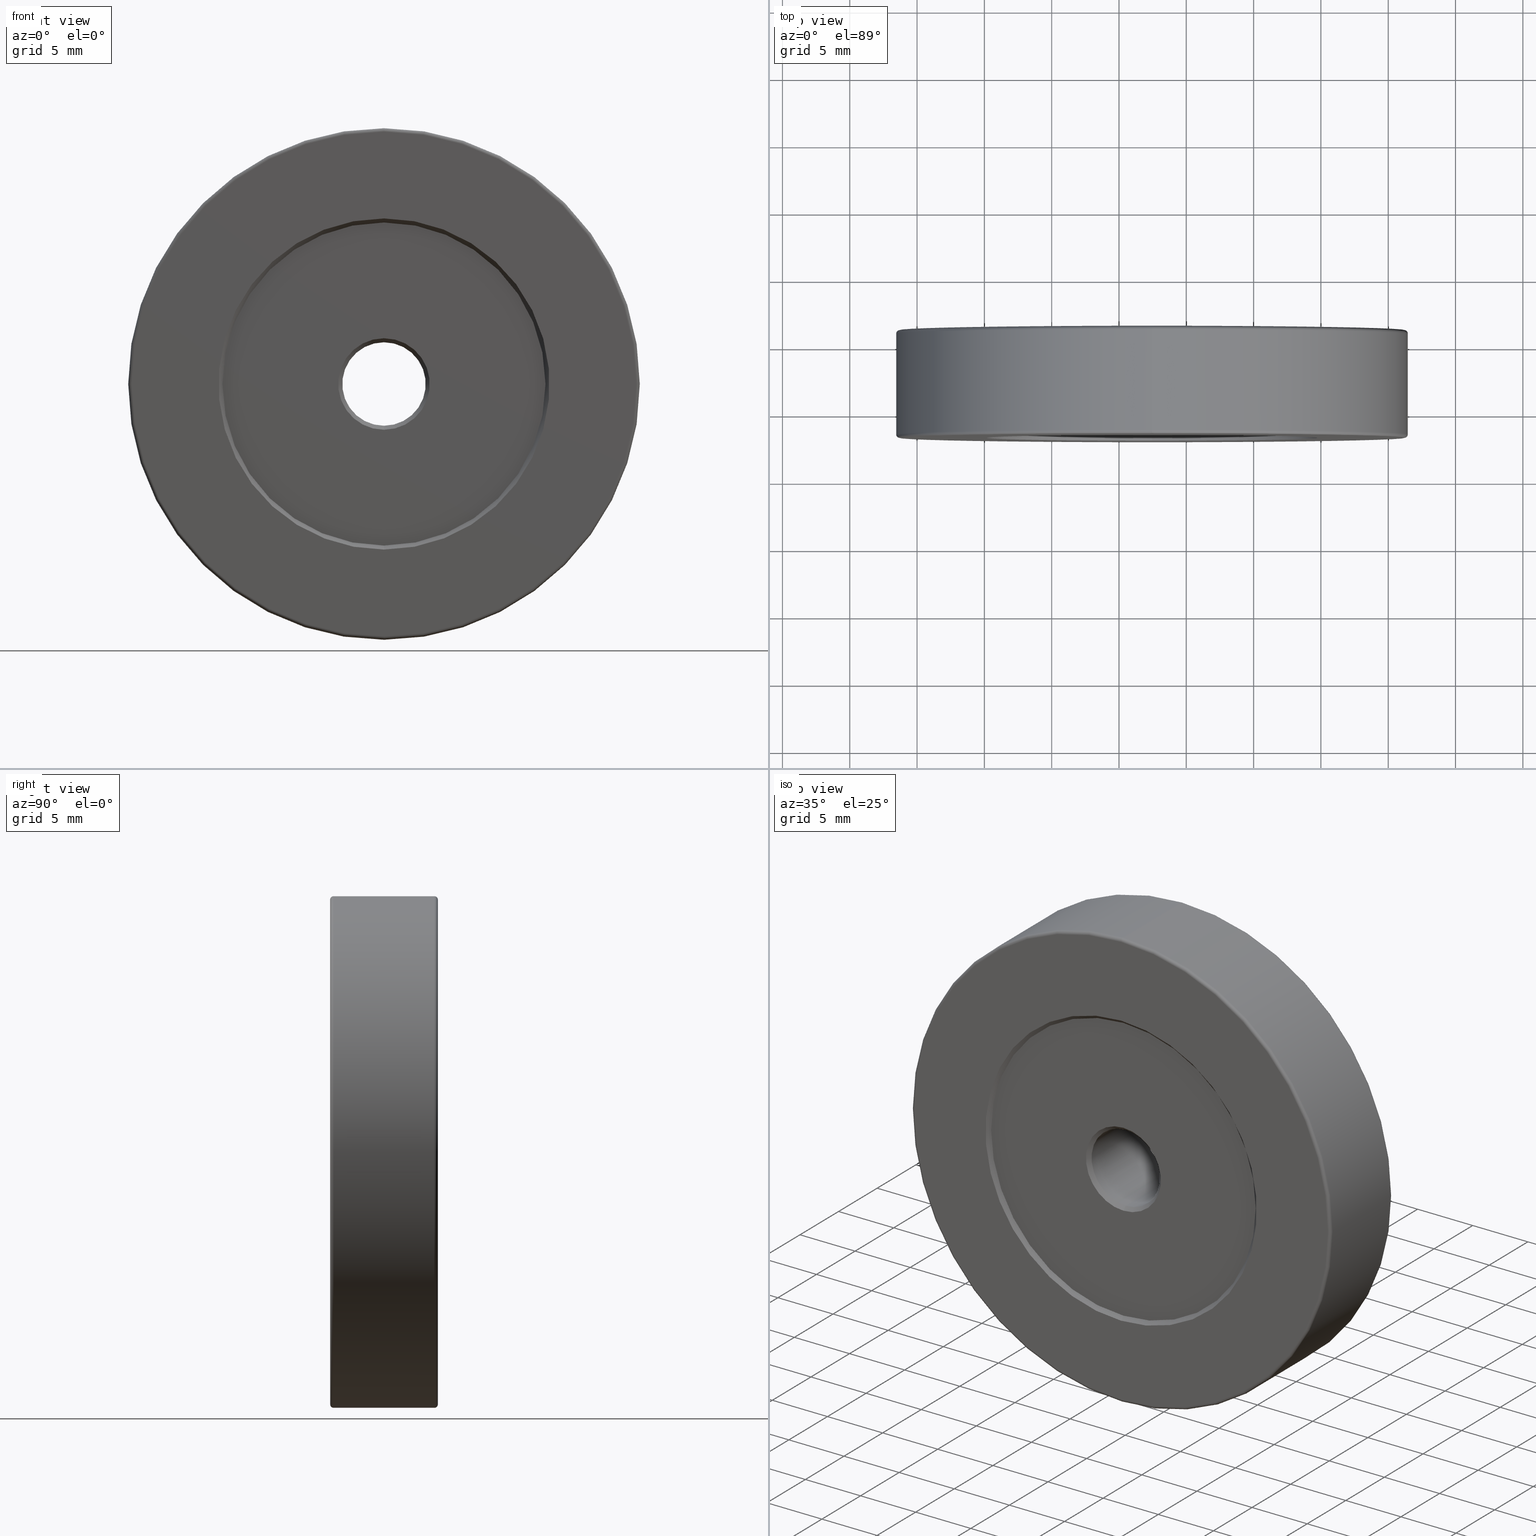
[diagram: canonical four-view strip — front | top / right | iso, engineering-drawing reading convention]
A machine part, canonical four-view strip (front | top / right | iso — engineering-drawing reading convention). The complete STEP part file that produces these views, byte-faithful:
ISO-10303-21;
HEADER;
FILE_DESCRIPTION (( 'STEP AP203' ),
    '1' );
FILE_NAME ('1.4.2.121_ZGH-38-DK8.STEP',
    '2024-04-06T05:22:08',
    ( '' ),
    ( '' ),
    'SwSTEP 2.0',
    'SolidWorks 2021',
    '' );
FILE_SCHEMA (( 'CONFIG_CONTROL_DESIGN' ));
ENDSEC;

DATA;
#1 = ADVANCED_FACE ( 'NONE', ( #140, #541 ), #116, .T. ) ;
#2 = ORIENTED_EDGE ( 'NONE', *, *, #213, .T. ) ;
#3 = EDGE_CURVE ( 'NONE', #122, #490, #70, .T. ) ;
#4 = CARTESIAN_POINT ( 'NONE',  ( -7.546808913101048510, 0.5064048726972784076, 38.00000000000000000 ) ) ;
#5 = ORIENTED_EDGE ( 'NONE', *, *, #168, .F. ) ;
#6 = CARTESIAN_POINT ( 'NONE',  ( -7.546808913101048510, -6.893595127302727832, 38.00000000000000000 ) ) ;
#7 = CARTESIAN_POINT ( 'NONE',  ( -7.546808913101048510, 0.8564048726972719461, 56.99999999999999289 ) ) ;
#8 = AXIS2_PLACEMENT_3D ( 'NONE', #80, #405, #69 ) ;
#9 = AXIS2_PLACEMENT_3D ( 'NONE', #195, #295, #536 ) ;
#10 = DIRECTION ( 'NONE',  ( 0.000000000000000000, 1.000000000000000000, 0.000000000000000000 ) ) ;
#11 = DIRECTION ( 'NONE',  ( -0.000000000000000000, -1.000000000000000000, -0.000000000000000000 ) ) ;
#12 = CC_DESIGN_DATE_AND_TIME_ASSIGNMENT ( #193, #202, ( #402 ) ) ;
#13 = CYLINDRICAL_SURFACE ( 'NONE', #504, 19.00000000000000000 ) ;
#14 = DIRECTION ( 'NONE',  ( 0.000000000000000000, -0.000000000000000000, 1.000000000000000000 ) ) ;
#15 = TOROIDAL_SURFACE ( 'NONE', #255, 18.75000000000000000, 0.2500000000000000000 ) ;
#16 = AXIS2_PLACEMENT_3D ( 'NONE', #579, #522, #200 ) ;
#17 = CARTESIAN_POINT ( 'NONE',  ( -7.546808913101045846, -6.893595127302727832, 19.25000000000000000 ) ) ;
#18 = ORIENTED_EDGE ( 'NONE', *, *, #304, .T. ) ;
#19 = FACE_OUTER_BOUND ( 'NONE', #260, .T. ) ;
#20 = ADVANCED_FACE ( 'NONE', ( #371 ), #158, .F. ) ;
#21 = VERTEX_POINT ( 'NONE', #143 ) ;
#22 = DIRECTION ( 'NONE',  ( 8.659560562354932858E-17, 0.7071067811865474617, -0.7071067811865474617 ) ) ;
#23 = ORIENTED_EDGE ( 'NONE', *, *, #63, .T. ) ;
#24 = AXIS2_PLACEMENT_3D ( 'NONE', #75, #211, #501 ) ;
#25 = AXIS2_PLACEMENT_3D ( 'NONE', #163, #355, #302 ) ;
#26 = ORIENTED_EDGE ( 'NONE', *, *, #289, .T. ) ;
#27 = DIRECTION ( 'NONE',  ( -0.000000000000000000, -1.000000000000000000, -0.000000000000000000 ) ) ;
#28 = CONICAL_SURFACE ( 'NONE', #484, 12.00000000000000355, 0.7853981633974482790 ) ;
#29 = ORIENTED_EDGE ( 'NONE', *, *, #168, .T. ) ;
#30 = CARTESIAN_POINT ( 'NONE',  ( -7.546808913101048510, 1.106404872697272168, 38.00000000000000000 ) ) ;
#31 = ORIENTED_EDGE ( 'NONE', *, *, #139, .F. ) ;
#32 = DIRECTION ( 'NONE',  ( -0.000000000000000000, -1.000000000000000000, -0.000000000000000000 ) ) ;
#33 = DIRECTION ( 'NONE',  ( 0.000000000000000000, 1.000000000000000000, 0.000000000000000000 ) ) ;
#34 = EDGE_CURVE ( 'NONE', #187, #490, #403, .T. ) ;
#35 = AXIS2_PLACEMENT_3D ( 'NONE', #348, #170, #121 ) ;
#36 = LOCAL_TIME ( 13, 22, 8.000000000000000000, #285 ) ;
#37 = CIRCLE ( 'NONE', #414, 18.74999999999999645 ) ;
#38 = ORIENTED_EDGE ( 'NONE', *, *, #108, .T. ) ;
#39 = LINE ( 'NONE', #281, #102 ) ;
#40 = LINE ( 'NONE', #557, #454 ) ;
#41 = CARTESIAN_POINT ( 'NONE',  ( -7.546808913101048510, -6.893595127302727832, 38.00000000000000000 ) ) ;
#42 = ADVANCED_FACE ( 'NONE', ( #283, #206 ), #472, .T. ) ;
#43 = VERTEX_POINT ( 'NONE', #521 ) ;
#44 = COORDINATED_UNIVERSAL_TIME_OFFSET ( 8, 0, .AHEAD. ) ;
#45 = FACE_BOUND ( 'NONE', #456, .T. ) ;
#46 = APPROVAL_PERSON_ORGANIZATION ( #357, #243, #461 ) ;
#47 = AXIS2_PLACEMENT_3D ( 'NONE', #558, #473, #363 ) ;
#48 = CONICAL_SURFACE ( 'NONE', #259, 3.400000000000000355, 0.7853981633974490562 ) ;
#49 = ORIENTED_EDGE ( 'NONE', *, *, #562, .T. ) ;
#50 = DIRECTION ( 'NONE',  ( 0.000000000000000000, 0.000000000000000000, 1.000000000000000000 ) ) ;
#51 = DIRECTION ( 'NONE',  ( 0.000000000000000000, 0.000000000000000000, 1.000000000000000000 ) ) ;
#52 = ORIENTED_EDGE ( 'NONE', *, *, #172, .F. ) ;
#53 = CALENDAR_DATE ( 2024, 6, 4 ) ;
#54 = FACE_OUTER_BOUND ( 'NONE', #600, .T. ) ;
#55 = CARTESIAN_POINT ( 'NONE',  ( -7.546808913101048510, 1.106404872697272168, 38.00000000000000000 ) ) ;
#56 = EDGE_CURVE ( 'NONE', #407, #77, #506, .T. ) ;
#57 = CIRCLE ( 'NONE', #524, 12.29999999999999893 ) ;
#58 = CONICAL_SURFACE ( 'NONE', #16, 3.400000000000000355, 0.7853981633974490562 ) ;
#59 = DIRECTION ( 'NONE',  ( 0.000000000000000000, 0.000000000000000000, 1.000000000000000000 ) ) ;
#60 = DIRECTION ( 'NONE',  ( 0.000000000000000000, 0.000000000000000000, -1.000000000000000000 ) ) ;
#61 = DIRECTION ( 'NONE',  ( 0.000000000000000000, 0.000000000000000000, -1.000000000000000000 ) ) ;
#62 = DIRECTION ( 'NONE',  ( 0.000000000000000000, 0.000000000000000000, 1.000000000000000000 ) ) ;
#63 = EDGE_CURVE ( 'NONE', #511, #595, #180, .T. ) ;
#64 = AXIS2_PLACEMENT_3D ( 'NONE', #245, #379, #476 ) ;
#65 = EDGE_CURVE ( 'NONE', #538, #592, #207, .T. ) ;
#66 = APPROVAL_STATUS ( 'not_yet_approved' ) ;
#67 = CARTESIAN_POINT ( 'NONE',  ( -7.546808913101046734, -6.893595127302727832, 50.29999999999998295 ) ) ;
#68 = VERTEX_POINT ( 'NONE', #408 ) ;
#69 = DIRECTION ( 'NONE',  ( 0.000000000000000000, 0.000000000000000000, 1.000000000000000000 ) ) ;
#70 = LINE ( 'NONE', #349, #227 ) ;
#71 = ADVANCED_FACE ( 'NONE', ( #417 ), #167, .T. ) ;
#72 = ORIENTED_EDGE ( 'NONE', *, *, #145, .F. ) ;
#73 = DIRECTION ( 'NONE',  ( 8.659560562354926695E-17, 0.7071067811865480168, -0.7071067811865470176 ) ) ;
#74 = AXIS2_PLACEMENT_3D ( 'NONE', #515, #470, #369 ) ;
#75 = CARTESIAN_POINT ( 'NONE',  ( -7.546808913101048510, -6.893595127302727832, 38.00000000000000000 ) ) ;
#76 = PRODUCT ( '1.4.2.121_ZGH-38-DK8', '1.4.2.121_ZGH-38-DK8', '', ( #466 ) ) ;
#77 = VERTEX_POINT ( 'NONE', #286 ) ;
#78 = CARTESIAN_POINT ( 'NONE',  ( -7.546808913101048510, -6.593595127302728010, 38.00000000000000000 ) ) ;
#79 = ORIENTED_EDGE ( 'NONE', *, *, #172, .T. ) ;
#80 = CARTESIAN_POINT ( 'NONE',  ( -7.546808913101048510, -6.893595127302727832, 38.00000000000000000 ) ) ;
#81 = ADVANCED_FACE ( 'NONE', ( #462, #45 ), #319, .F. ) ;
#82 = EDGE_LOOP ( 'NONE', ( #588, #543, #113, #72 ) ) ;
#83 = CIRCLE ( 'NONE', #590, 18.99999999999999645 ) ;
#84 = VERTEX_POINT ( 'NONE', #418 ) ;
#85 = DATE_TIME_ROLE ( 'creation_date' ) ;
#86 = DIRECTION ( 'NONE',  ( 0.000000000000000000, 0.000000000000000000, 1.000000000000000000 ) ) ;
#87 = ORIENTED_EDGE ( 'NONE', *, *, #65, .T. ) ;
#88 = CARTESIAN_POINT ( 'NONE',  ( 0.000000000000000000, 0.000000000000000000, 0.000000000000000000 ) ) ;
#89 = CARTESIAN_POINT ( 'NONE',  ( -7.546808913101048510, -6.893595127302727832, 34.89999999999999858 ) ) ;
#90 = CC_DESIGN_PERSON_AND_ORGANIZATION_ASSIGNMENT ( #150, #292, ( #165 ) ) ;
#91 = ORIENTED_EDGE ( 'NONE', *, *, #551, .T. ) ;
#92 = DIRECTION ( 'NONE',  ( 0.000000000000000000, 1.000000000000000000, 0.000000000000000000 ) ) ;
#93 = DIRECTION ( 'NONE',  ( 0.000000000000000000, 0.000000000000000000, 1.000000000000000000 ) ) ;
#94 = CC_DESIGN_APPROVAL ( #243, ( #594 ) ) ;
#95 = AXIS2_PLACEMENT_3D ( 'NONE', #249, #438, #569 ) ;
#96 = ORIENTED_EDGE ( 'NONE', *, *, #517, .F. ) ;
#97 = DIRECTION ( 'NONE',  ( -0.000000000000000000, -1.000000000000000000, -0.000000000000000000 ) ) ;
#98 = CARTESIAN_POINT ( 'NONE',  ( -7.546808913101048510, 0.8064048726972722347, 38.00000000000000000 ) ) ;
#99 = DIRECTION ( 'NONE',  ( -0.000000000000000000, 1.000000000000000000, -0.000000000000000000 ) ) ;
#100 = DIRECTION ( 'NONE',  ( 0.000000000000000000, -0.7071067811865470176, -0.7071067811865480168 ) ) ;
#101 = DIRECTION ( 'NONE',  ( -0.000000000000000000, -1.000000000000000000, -0.000000000000000000 ) ) ;
#102 = VECTOR ( 'NONE', #606, 1000.000000000000000 ) ;
#103 = APPROVAL_PERSON_ORGANIZATION ( #269, #583, #475 ) ;
#104 = AXIS2_PLACEMENT_3D ( 'NONE', #4, #358, #565 ) ;
#105 = PERSON_AND_ORGANIZATION ( #489, #147 ) ;
#106 = DIRECTION ( 'NONE',  ( -0.000000000000000000, -1.000000000000000000, -0.000000000000000000 ) ) ;
#107 = PERSON_AND_ORGANIZATION ( #489, #147 ) ;
#108 = EDGE_CURVE ( 'NONE', #122, #511, #186, .T. ) ;
#109 = CARTESIAN_POINT ( 'NONE',  ( -7.546808913101048510, -6.293595127302728187, 41.09999999999999432 ) ) ;
#110 = EDGE_CURVE ( 'NONE', #509, #447, #239, .T. ) ;
#111 = PERSON_AND_ORGANIZATION_ROLE ( 'design_supplier' ) ;
#112 = CARTESIAN_POINT ( 'NONE',  ( -7.546808913101045846, -6.643595127302727832, 19.25000000000000000 ) ) ;
#113 = ORIENTED_EDGE ( 'NONE', *, *, #431, .F. ) ;
#114 = EDGE_LOOP ( 'NONE', ( #221, #603, #79, #129 ) ) ;
#115 = FACE_OUTER_BOUND ( 'NONE', #404, .T. ) ;
#116 = PLANE ( 'NONE',  #362 ) ;
#117 = DIRECTION ( 'NONE',  ( -0.000000000000000000, 1.000000000000000000, -0.000000000000000000 ) ) ;
#118 = DIRECTION ( 'NONE',  ( -0.000000000000000000, -1.000000000000000000, -0.000000000000000000 ) ) ;
#119 = CIRCLE ( 'NONE', #372, 18.99999999999999645 ) ;
#120 = ORIENTED_EDGE ( 'NONE', *, *, #566, .T. ) ;
#121 = DIRECTION ( 'NONE',  ( 0.000000000000000000, 0.000000000000000000, -1.000000000000000000 ) ) ;
#122 = VERTEX_POINT ( 'NONE', #561 ) ;
#123 = FACE_OUTER_BOUND ( 'NONE', #356, .T. ) ;
#124 = ADVANCED_FACE ( 'NONE', ( #370 ), #28, .F. ) ;
#125 = ORIENTED_EDGE ( 'NONE', *, *, #56, .F. ) ;
#126 = CARTESIAN_POINT ( 'NONE',  ( -7.546808913101046734, -6.893595127302727832, 50.29999999999998295 ) ) ;
#127 = AXIS2_PLACEMENT_3D ( 'NONE', #30, #251, #215 ) ;
#128 = DIRECTION ( 'NONE',  ( 0.000000000000000000, 0.000000000000000000, -1.000000000000000000 ) ) ;
#129 = ORIENTED_EDGE ( 'NONE', *, *, #499, .F. ) ;
#130 = DIRECTION ( 'NONE',  ( -0.000000000000000000, 1.000000000000000000, -0.000000000000000000 ) ) ;
#131 = EDGE_LOOP ( 'NONE', ( #611, #26, #301, #52 ) ) ;
#132 = DIRECTION ( 'NONE',  ( 1.000000000000000000, 0.000000000000000000, 0.000000000000000000 ) ) ;
#133 = DIRECTION ( 'NONE',  ( -1.000000000000000000, 0.000000000000000000, 0.000000000000000000 ) ) ;
#134 = ORIENTED_EDGE ( 'NONE', *, *, #479, .F. ) ;
#135 = APPROVAL_STATUS ( 'not_yet_approved' ) ;
#136 = DIRECTION ( 'NONE',  ( 0.000000000000000000, -0.000000000000000000, 1.000000000000000000 ) ) ;
#137 = CIRCLE ( 'NONE', #567, 3.400000000000000355 ) ;
#138 = AXIS2_PLACEMENT_3D ( 'NONE', #252, #99, #161 ) ;
#139 = EDGE_CURVE ( 'NONE', #331, #274, #37, .T. ) ;
#140 = FACE_BOUND ( 'NONE', #419, .T. ) ;
#141 = PERSON_AND_ORGANIZATION_ROLE ( 'creator' ) ;
#142 = CARTESIAN_POINT ( 'NONE',  ( -7.546808913101048510, -6.293595127302728187, 38.00000000000000000 ) ) ;
#143 = CARTESIAN_POINT ( 'NONE',  ( -7.546808913101048510, 1.106404872697272168, 50.29999999999999716 ) ) ;
#144 = DIRECTION ( 'NONE',  ( 0.000000000000000000, 0.000000000000000000, 1.000000000000000000 ) ) ;
#145 = EDGE_CURVE ( 'NONE', #181, #77, #525, .T. ) ;
#146 = CARTESIAN_POINT ( 'NONE',  ( -7.546808913101048510, 0.8064048726972722347, 41.39999999999999147 ) ) ;
#147 = ORGANIZATION ( 'δָ��', 'δָ��', '' ) ;
#148 = AXIS2_PLACEMENT_3D ( 'NONE', #194, #573, #344 ) ;
#149 = CYLINDRICAL_SURFACE ( 'NONE', #337, 19.00000000000000000 ) ;
#150 = PERSON_AND_ORGANIZATION ( #489, #147 ) ;
#151 = CARTESIAN_POINT ( 'NONE',  ( -7.546808913101048510, 0.8564048726972719461, 38.00000000000000000 ) ) ;
#152 = DIRECTION ( 'NONE',  ( 0.000000000000000000, 1.000000000000000000, 0.000000000000000000 ) ) ;
#153 = CARTESIAN_POINT ( 'NONE',  ( -7.546808913101048510, -6.593595127302728010, 38.00000000000000000 ) ) ;
#154 = ORIENTED_EDGE ( 'NONE', *, *, #406, .F. ) ;
#155 = CIRCLE ( 'NONE', #35, 0.2500000000000002220 ) ;
#156 = ADVANCED_FACE ( 'NONE', ( #325 ), #375, .F. ) ;
#157 = CC_DESIGN_APPROVAL ( #575, ( #402 ) ) ;
#158 = CONICAL_SURFACE ( 'NONE', #95, 3.099999999999998757, 0.7853981633974476129 ) ;
#159 = ORIENTED_EDGE ( 'NONE', *, *, #523, .F. ) ;
#160 = DIRECTION ( 'NONE',  ( -0.000000000000000000, -1.000000000000000000, -0.000000000000000000 ) ) ;
#161 = DIRECTION ( 'NONE',  ( 0.000000000000000000, 0.000000000000000000, -1.000000000000000000 ) ) ;
#162 = EDGE_LOOP ( 'NONE', ( #18, #38, #23, #514 ) ) ;
#163 = CARTESIAN_POINT ( 'NONE',  ( -7.546808913101048510, -6.593595127302728010, 38.00000000000000000 ) ) ;
#164 = ADVANCED_FACE ( 'NONE', ( #189 ), #513, .F. ) ;
#165 = PRODUCT_DEFINITION_FORMATION_WITH_SPECIFIED_SOURCE ( '�κ�', '', #76, .NOT_KNOWN. ) ;
#166 = CARTESIAN_POINT ( 'NONE',  ( -7.546808913101048510, 0.5064048726972784076, 41.09999999999999432 ) ) ;
#167 = TOROIDAL_SURFACE ( 'NONE', #47, 18.75000000000000000, 0.2500000000000000000 ) ;
#168 = EDGE_CURVE ( 'NONE', #122, #390, #555, .T. ) ;
#169 = ORIENTED_EDGE ( 'NONE', *, *, #196, .T. ) ;
#170 = DIRECTION ( 'NONE',  ( 1.000000000000000000, -0.000000000000000000, 1.224646799147353207E-16 ) ) ;
#171 = ORIENTED_EDGE ( 'NONE', *, *, #563, .T. ) ;
#172 = EDGE_CURVE ( 'NONE', #253, #509, #277, .T. ) ;
#173 = CARTESIAN_POINT ( 'NONE',  ( -7.546808913101048510, 0.8064048726972740111, 38.00000000000000000 ) ) ;
#174 = EDGE_CURVE ( 'NONE', #592, #538, #258, .T. ) ;
#175 = ORIENTED_EDGE ( 'NONE', *, *, #341, .F. ) ;
#176 = AXIS2_PLACEMENT_3D ( 'NONE', #540, #27, #596 ) ;
#177 = CARTESIAN_POINT ( 'NONE',  ( -7.546808913101046734, 0.8064048726972722347, 25.99999999999999645 ) ) ;
#178 = DIRECTION ( 'NONE',  ( 0.000000000000000000, 1.000000000000000000, 0.000000000000000000 ) ) ;
#179 = AXIS2_PLACEMENT_3D ( 'NONE', #604, #607, #136 ) ;
#180 = CIRCLE ( 'NONE', #496, 3.099999999999998757 ) ;
#181 = VERTEX_POINT ( 'NONE', #7 ) ;
#182 = COORDINATED_UNIVERSAL_TIME_OFFSET ( 8, 0, .AHEAD. ) ;
#183 = CARTESIAN_POINT ( 'NONE',  ( -7.546808913101048510, -6.893595127302727832, 38.00000000000000000 ) ) ;
#184 = ORIENTED_EDGE ( 'NONE', *, *, #574, .T. ) ;
#185 = PERSON_AND_ORGANIZATION ( #489, #147 ) ;
#186 = LINE ( 'NONE', #89, #537 ) ;
#187 = VERTEX_POINT ( 'NONE', #520 ) ;
#188 =( NAMED_UNIT ( * ) PLANE_ANGLE_UNIT ( ) SI_UNIT ( $, .RADIAN. ) );
#189 = FACE_OUTER_BOUND ( 'NONE', #162, .T. ) ;
#190 = AXIS2_PLACEMENT_3D ( 'NONE', #6, #97, #225 ) ;
#191 = ADVANCED_FACE ( 'NONE', ( #226 ), #199, .F. ) ;
#192 = DIRECTION ( 'NONE',  ( 0.000000000000000000, -0.000000000000000000, 1.000000000000000000 ) ) ;
#193 = DATE_AND_TIME ( #380, #395 ) ;
#194 = CARTESIAN_POINT ( 'NONE',  ( -7.546808913101048510, -6.293595127302728187, 38.00000000000000000 ) ) ;
#195 = CARTESIAN_POINT ( 'NONE',  ( -7.546808913101048510, -6.893595127302727832, 38.00000000000000000 ) ) ;
#196 = EDGE_CURVE ( 'NONE', #331, #547, #427, .T. ) ;
#197 = DIRECTION ( 'NONE',  ( 1.000000000000000000, -0.000000000000000000, 1.224646799147353207E-16 ) ) ;
#198 = VECTOR ( 'NONE', #589, 1000.000000000000114 ) ;
#199 = CONICAL_SURFACE ( 'NONE', #455, 12.00000000000000355, 0.7853981633974482790 ) ;
#200 = DIRECTION ( 'NONE',  ( 0.000000000000000000, 0.000000000000000000, -1.000000000000000000 ) ) ;
#201 = EDGE_LOOP ( 'NONE', ( #317, #409 ) ) ;
#202 = DATE_TIME_ROLE ( 'classification_date' ) ;
#203 = CARTESIAN_POINT ( 'NONE',  ( -7.546808913101048510, -6.593595127302728010, 25.99999999999999645 ) ) ;
#204 = PRODUCT_RELATED_PRODUCT_CATEGORY ( 'detail', '', ( #76 ) ) ;
#205 = ORIENTED_EDGE ( 'NONE', *, *, #393, .T. ) ;
#206 = FACE_BOUND ( 'NONE', #201, .T. ) ;
#207 = CIRCLE ( 'NONE', #527, 12.00000000000000355 ) ;
#208 = ORIENTED_EDGE ( 'NONE', *, *, #574, .F. ) ;
#209 = CARTESIAN_POINT ( 'NONE',  ( -7.546808913101048510, 1.106404872697272168, 38.00000000000000000 ) ) ;
#210 = ORIENTED_EDGE ( 'NONE', *, *, #602, .F. ) ;
#211 = DIRECTION ( 'NONE',  ( -0.000000000000000000, 1.000000000000000000, -0.000000000000000000 ) ) ;
#212 = ADVANCED_FACE ( 'NONE', ( #471, #54 ), #234, .T. ) ;
#213 = EDGE_CURVE ( 'NONE', #274, #68, #291, .T. ) ;
#214 = ORIENTED_EDGE ( 'NONE', *, *, #174, .T. ) ;
#215 = DIRECTION ( 'NONE',  ( 0.000000000000000000, 0.000000000000000000, 1.000000000000000000 ) ) ;
#216 = LOCAL_TIME ( 13, 22, 8.000000000000000000, #182 ) ;
#217 = EDGE_LOOP ( 'NONE', ( #586, #297, #305, #552 ) ) ;
#218 = DIRECTION ( 'NONE',  ( 0.000000000000000000, 0.000000000000000000, 1.000000000000000000 ) ) ;
#219 = VECTOR ( 'NONE', #411, 1000.000000000000000 ) ;
#220 = ORIENTED_EDGE ( 'NONE', *, *, #56, .T. ) ;
#221 = ORIENTED_EDGE ( 'NONE', *, *, #289, .F. ) ;
#222 = DIRECTION ( 'NONE',  ( -0.000000000000000000, -1.000000000000000000, -0.000000000000000000 ) ) ;
#223 = DIRECTION ( 'NONE',  ( 0.000000000000000000, 1.000000000000000000, 0.000000000000000000 ) ) ;
#224 = ORIENTED_EDGE ( 'NONE', *, *, #449, .F. ) ;
#225 = DIRECTION ( 'NONE',  ( 0.000000000000000000, 0.000000000000000000, 1.000000000000000000 ) ) ;
#226 = FACE_OUTER_BOUND ( 'NONE', #542, .T. ) ;
#227 = VECTOR ( 'NONE', #100, 1000.000000000000000 ) ;
#228 = CIRCLE ( 'NONE', #580, 3.399999999999993250 ) ;
#229 = ORIENTED_EDGE ( 'NONE', *, *, #523, .T. ) ;
#230 = DIRECTION ( 'NONE',  ( -1.000000000000000000, 0.000000000000000000, 0.000000000000000000 ) ) ;
#231 = ORIENTED_EDGE ( 'NONE', *, *, #213, .F. ) ;
#232 = APPROVAL_DATE_TIME ( #553, #243 ) ;
#233 = ADVANCED_FACE ( 'NONE', ( #426 ), #58, .F. ) ;
#234 = PLANE ( 'NONE',  #278 ) ;
#235 = DIRECTION ( 'NONE',  ( 0.000000000000000000, 0.000000000000000000, 1.000000000000000000 ) ) ;
#236 = APPROVAL_DATE_TIME ( #247, #583 ) ;
#237 = CARTESIAN_POINT ( 'NONE',  ( -7.546808913101048510, -6.893595127302727832, 56.74999999999999289 ) ) ;
#238 = AXIS2_PLACEMENT_3D ( 'NONE', #353, #32, #550 ) ;
#239 = CIRCLE ( 'NONE', #336, 12.29999999999998472 ) ;
#240 = DIRECTION ( 'NONE',  ( 0.000000000000000000, 0.000000000000000000, 1.000000000000000000 ) ) ;
#241 = ADVANCED_FACE ( 'NONE', ( #576 ), #246, .F. ) ;
#242 = DIRECTION ( 'NONE',  ( 0.000000000000000000, 0.000000000000000000, 1.000000000000000000 ) ) ;
#243 = APPROVAL ( #135, 'δָ��' ) ;
#244 = CARTESIAN_POINT ( 'NONE',  ( -7.546808913101048510, -6.643595127302727832, 38.00000000000000000 ) ) ;
#245 = CARTESIAN_POINT ( 'NONE',  ( -7.546808913101048510, 0.8564048726972719461, 38.00000000000000000 ) ) ;
#246 = CONICAL_SURFACE ( 'NONE', #9, 12.29999999999998472, 0.7853981633974338461 ) ;
#247 = DATE_AND_TIME ( #480, #36 ) ;
#248 = DIRECTION ( 'NONE',  ( 0.000000000000000000, 1.000000000000000000, 0.000000000000000000 ) ) ;
#249 = CARTESIAN_POINT ( 'NONE',  ( -7.546808913101048510, 0.5064048726972784076, 38.00000000000000000 ) ) ;
#250 = ORIENTED_EDGE ( 'NONE', *, *, #304, .F. ) ;
#251 = DIRECTION ( 'NONE',  ( 0.000000000000000000, 1.000000000000000000, 0.000000000000000000 ) ) ;
#252 = CARTESIAN_POINT ( 'NONE',  ( -7.546808913101048510, -6.593595127302728010, 38.00000000000000000 ) ) ;
#253 = VERTEX_POINT ( 'NONE', #203 ) ;
#254 = LINE ( 'NONE', #443, #577 ) ;
#255 = AXIS2_PLACEMENT_3D ( 'NONE', #264, #33, #218 ) ;
#256 = ADVANCED_FACE ( 'NONE', ( #296 ), #434, .T. ) ;
#257 = LOCAL_TIME ( 13, 22, 8.000000000000000000, #477 ) ;
#258 = CIRCLE ( 'NONE', #382, 12.00000000000000355 ) ;
#259 = AXIS2_PLACEMENT_3D ( 'NONE', #385, #106, #430 ) ;
#260 = EDGE_LOOP ( 'NONE', ( #205, #120, #442, #96 ) ) ;
#261 = DIRECTION ( 'NONE',  ( 0.000000000000000000, 0.7071067811865480168, 0.7071067811865470176 ) ) ;
#262 = CC_DESIGN_PERSON_AND_ORGANIZATION_ASSIGNMENT ( #185, #570, ( #76 ) ) ;
#263 = CARTESIAN_POINT ( 'NONE',  ( -7.546808913101048510, -6.593595127302728010, 34.60000000000000142 ) ) ;
#264 = CARTESIAN_POINT ( 'NONE',  ( -7.546808913101048510, -6.643595127302727832, 38.00000000000000000 ) ) ;
#265 =( GEOMETRIC_REPRESENTATION_CONTEXT ( 3 ) GLOBAL_UNCERTAINTY_ASSIGNED_CONTEXT ( ( #435 ) ) GLOBAL_UNIT_ASSIGNED_CONTEXT ( ( #420, #188, #373 ) ) REPRESENTATION_CONTEXT ( 'NONE', 'WORKASPACE' ) );
#266 = ORIENTED_EDGE ( 'NONE', *, *, #479, .T. ) ;
#267 = AXIS2_PLACEMENT_3D ( 'NONE', #321, #133, #510 ) ;
#268 = ORIENTED_EDGE ( 'NONE', *, *, #487, .F. ) ;
#269 = PERSON_AND_ORGANIZATION ( #489, #147 ) ;
#270 = CARTESIAN_POINT ( 'NONE',  ( -7.546808913101048510, -6.893595127302727832, 38.00000000000000000 ) ) ;
#271 = ORIENTED_EDGE ( 'NONE', *, *, #505, .T. ) ;
#272 = DIRECTION ( 'NONE',  ( 0.000000000000000000, 0.000000000000000000, 1.000000000000000000 ) ) ;
#273 = DIRECTION ( 'NONE',  ( 0.000000000000000000, 0.000000000000000000, 1.000000000000000000 ) ) ;
#274 = VERTEX_POINT ( 'NONE', #17 ) ;
#275 = VECTOR ( 'NONE', #22, 1000.000000000000114 ) ;
#276 = CC_DESIGN_APPROVAL ( #583, ( #165 ) ) ;
#277 = LINE ( 'NONE', #516, #219 ) ;
#278 = AXIS2_PLACEMENT_3D ( 'NONE', #421, #571, #14 ) ;
#279 = EDGE_CURVE ( 'NONE', #364, #84, #599, .T. ) ;
#280 = EDGE_LOOP ( 'NONE', ( #323, #415, #229, #441 ) ) ;
#281 = CARTESIAN_POINT ( 'NONE',  ( -7.546808913101048510, -6.593595127302728010, 41.39999999999999858 ) ) ;
#282 = DIRECTION ( 'NONE',  ( 0.000000000000000000, 0.000000000000000000, 1.000000000000000000 ) ) ;
#283 = FACE_OUTER_BOUND ( 'NONE', #387, .T. ) ;
#284 = EDGE_CURVE ( 'NONE', #68, #547, #83, .T. ) ;
#285 = COORDINATED_UNIVERSAL_TIME_OFFSET ( 8, 0, .AHEAD. ) ;
#286 = CARTESIAN_POINT ( 'NONE',  ( -7.546808913101048510, 1.106404872697272168, 56.74999999999999289 ) ) ;
#287 = DIRECTION ( 'NONE',  ( 0.000000000000000000, 1.000000000000000000, 0.000000000000000000 ) ) ;
#288 = APPROVAL_DATE_TIME ( #529, #575 ) ;
#289 = EDGE_CURVE ( 'NONE', #469, #447, #335, .T. ) ;
#290 = DIRECTION ( 'NONE',  ( 8.659560562354809599E-17, -0.7071067811865577868, 0.7071067811865373587 ) ) ;
#291 = CIRCLE ( 'NONE', #546, 0.2500000000000002220 ) ;
#292 = PERSON_AND_ORGANIZATION_ROLE ( 'creator' ) ;
#293 = MANIFOLD_SURFACE_SHAPE_REPRESENTATION ( '1.4.2.121_ZGH-38-DK8', ( #531, #412 ), #265 ) ;
#294 = SHAPE_DEFINITION_REPRESENTATION ( #312, #293 ) ;
#295 = DIRECTION ( 'NONE',  ( -0.000000000000000000, -1.000000000000000000, -0.000000000000000000 ) ) ;
#296 = FACE_OUTER_BOUND ( 'NONE', #82, .T. ) ;
#297 = ORIENTED_EDGE ( 'NONE', *, *, #602, .T. ) ;
#298 = ADVANCED_FACE ( 'NONE', ( #433 ), #48, .F. ) ;
#299 = ORIENTED_EDGE ( 'NONE', *, *, #386, .T. ) ;
#300 = CARTESIAN_POINT ( 'NONE',  ( -7.546808913101048510, 0.8064048726972722347, 38.00000000000000000 ) ) ;
#301 = ORIENTED_EDGE ( 'NONE', *, *, #110, .F. ) ;
#302 = DIRECTION ( 'NONE',  ( 0.000000000000000000, 0.000000000000000000, 1.000000000000000000 ) ) ;
#303 = APPLICATION_CONTEXT ( 'configuration controlled 3d designs of mechanical parts and assemblies' ) ;
#304 = EDGE_CURVE ( 'NONE', #390, #122, #309, .T. ) ;
#305 = ORIENTED_EDGE ( 'NONE', *, *, #517, .T. ) ;
#306 = LINE ( 'NONE', #166, #360 ) ;
#307 = AXIS2_PLACEMENT_3D ( 'NONE', #503, #92, #50 ) ;
#308 = AXIS2_PLACEMENT_3D ( 'NONE', #142, #554, #128 ) ;
#309 = CIRCLE ( 'NONE', #148, 3.099999999999998757 ) ;
#310 = ORIENTED_EDGE ( 'NONE', *, *, #65, .F. ) ;
#311 = CARTESIAN_POINT ( 'NONE',  ( -7.546808913101046734, 0.8064048726972740111, 25.99999999999999645 ) ) ;
#312 = PRODUCT_DEFINITION_SHAPE ( 'NONE', 'NONE',  #594 ) ;
#313 = EDGE_LOOP ( 'NONE', ( #492, #2, #154, #465 ) ) ;
#314 = DIRECTION ( 'NONE',  ( 0.000000000000000000, 0.000000000000000000, -1.000000000000000000 ) ) ;
#315 = ORIENTED_EDGE ( 'NONE', *, *, #499, .T. ) ;
#316 = CARTESIAN_POINT ( 'NONE',  ( -7.546808913101046734, -6.593595127302728010, 50.00000000000000000 ) ) ;
#317 = ORIENTED_EDGE ( 'NONE', *, *, #487, .T. ) ;
#318 = CALENDAR_DATE ( 2024, 6, 4 ) ;
#319 = PLANE ( 'NONE',  #179 ) ;
#320 = ORIENTED_EDGE ( 'NONE', *, *, #110, .T. ) ;
#321 = CARTESIAN_POINT ( 'NONE',  ( -7.546808913101048510, 0.8564048726972719461, 56.74999999999999289 ) ) ;
#322 = ADVANCED_FACE ( 'NONE', ( #115 ), #497, .T. ) ;
#323 = ORIENTED_EDGE ( 'NONE', *, *, #505, .F. ) ;
#324 = APPLICATION_PROTOCOL_DEFINITION ( 'international standard', 'config_control_design', 1994, #303 ) ;
#325 = FACE_OUTER_BOUND ( 'NONE', #280, .T. ) ;
#326 = ADVANCED_FACE ( 'NONE', ( #19 ), #149, .T. ) ;
#327 = ORIENTED_EDGE ( 'NONE', *, *, #145, .T. ) ;
#328 = CARTESIAN_POINT ( 'NONE',  ( -7.546808913101046734, 1.106404872697272168, 25.69999999999999574 ) ) ;
#329 = DIRECTION ( 'NONE',  ( -0.000000000000000000, 1.000000000000000000, -0.000000000000000000 ) ) ;
#330 = AXIS2_PLACEMENT_3D ( 'NONE', #481, #101, #528 ) ;
#331 = VERTEX_POINT ( 'NONE', #237 ) ;
#332 = DIRECTION ( 'NONE',  ( -0.000000000000000000, -1.000000000000000000, -0.000000000000000000 ) ) ;
#333 = ORIENTED_EDGE ( 'NONE', *, *, #3, .T. ) ;
#334 = DIRECTION ( 'NONE',  ( 0.000000000000000000, 0.000000000000000000, 1.000000000000000000 ) ) ;
#335 = LINE ( 'NONE', #67, #568 ) ;
#336 = AXIS2_PLACEMENT_3D ( 'NONE', #183, #223, #367 ) ;
#337 = AXIS2_PLACEMENT_3D ( 'NONE', #478, #339, #61 ) ;
#338 = DIRECTION ( 'NONE',  ( 0.000000000000000000, 0.000000000000000000, 1.000000000000000000 ) ) ;
#339 = DIRECTION ( 'NONE',  ( -0.000000000000000000, -1.000000000000000000, -0.000000000000000000 ) ) ;
#341 = EDGE_CURVE ( 'NONE', #253, #469, #416, .T. ) ;
#340 = DESIGN_CONTEXT ( 'detailed design', #396, 'design' ) ;
#342 = ORIENTED_EDGE ( 'NONE', *, *, #451, .T. ) ;
#343 = ORIENTED_EDGE ( 'NONE', *, *, #34, .T. ) ;
#344 = DIRECTION ( 'NONE',  ( 0.000000000000000000, 0.000000000000000000, -1.000000000000000000 ) ) ;
#345 = CIRCLE ( 'NONE', #25, 12.00000000000000355 ) ;
#346 = AXIS2_PLACEMENT_3D ( 'NONE', #389, #587, #334 ) ;
#347 = ORIENTED_EDGE ( 'NONE', *, *, #34, .F. ) ;
#348 = CARTESIAN_POINT ( 'NONE',  ( -7.546808913101045846, 0.8564048726972719461, 19.25000000000000000 ) ) ;
#349 = CARTESIAN_POINT ( 'NONE',  ( -7.546808913101048510, -6.593595127302728010, 34.60000000000000142 ) ) ;
#350 = LINE ( 'NONE', #311, #275 ) ;
#351 = CARTESIAN_POINT ( 'NONE',  ( -7.546808913101045846, -6.643595127302727832, 56.99999999999999289 ) ) ;
#352 = AXIS2_PLACEMENT_3D ( 'NONE', #436, #10, #192 ) ;
#353 = CARTESIAN_POINT ( 'NONE',  ( -7.546808913101048510, 1.106404872697272168, 38.00000000000000000 ) ) ;
#354 = ORIENTED_EDGE ( 'NONE', *, *, #431, .T. ) ;
#355 = DIRECTION ( 'NONE',  ( -0.000000000000000000, 1.000000000000000000, -0.000000000000000000 ) ) ;
#356 = EDGE_LOOP ( 'NONE', ( #231, #31, #169, #564 ) ) ;
#357 = PERSON_AND_ORGANIZATION ( #489, #147 ) ;
#358 = DIRECTION ( 'NONE',  ( 0.000000000000000000, 1.000000000000000000, 0.000000000000000000 ) ) ;
#359 = CIRCLE ( 'NONE', #307, 3.099999999999998757 ) ;
#360 = VECTOR ( 'NONE', #261, 1000.000000000000000 ) ;
#361 = ORIENTED_EDGE ( 'NONE', *, *, #63, .F. ) ;
#362 = AXIS2_PLACEMENT_3D ( 'NONE', #591, #584, #240 ) ;
#363 = DIRECTION ( 'NONE',  ( 0.000000000000000000, 0.000000000000000000, 1.000000000000000000 ) ) ;
#364 = VERTEX_POINT ( 'NONE', #146 ) ;
#365 = DATE_AND_TIME ( #318, #216 ) ;
#366 = CC_DESIGN_DATE_AND_TIME_ASSIGNMENT ( #365, #85, ( #594 ) ) ;
#367 = DIRECTION ( 'NONE',  ( 0.000000000000000000, 0.000000000000000000, 1.000000000000000000 ) ) ;
#368 = ORIENTED_EDGE ( 'NONE', *, *, #174, .F. ) ;
#369 = DIRECTION ( 'NONE',  ( 0.000000000000000000, 0.000000000000000000, 1.000000000000000000 ) ) ;
#370 = FACE_OUTER_BOUND ( 'NONE', #549, .T. ) ;
#371 = FACE_OUTER_BOUND ( 'NONE', #399, .T. ) ;
#372 = AXIS2_PLACEMENT_3D ( 'NONE', #244, #248, #242 ) ;
#373 =( NAMED_UNIT ( * ) SI_UNIT ( $, .STERADIAN. ) SOLID_ANGLE_UNIT ( ) );
#374 = CARTESIAN_POINT ( 'NONE',  ( -7.546808913101048510, -6.643595127302727832, 56.74999999999999289 ) ) ;
#375 = CONICAL_SURFACE ( 'NONE', #104, 3.099999999999998757, 0.7853981633974476129 ) ;
#376 = CC_DESIGN_PERSON_AND_ORGANIZATION_ASSIGNMENT ( #612, #141, ( #594 ) ) ;
#377 = CARTESIAN_POINT ( 'NONE',  ( -7.546808913101048510, 0.5064048726972784076, 38.00000000000000000 ) ) ;
#378 = CALENDAR_DATE ( 2024, 6, 4 ) ;
#379 = DIRECTION ( 'NONE',  ( -0.000000000000000000, -1.000000000000000000, -0.000000000000000000 ) ) ;
#380 = CALENDAR_DATE ( 2024, 6, 4 ) ;
#381 = CARTESIAN_POINT ( 'NONE',  ( -7.546808913101048510, 1.106404872697272168, 38.00000000000000000 ) ) ;
#382 = AXIS2_PLACEMENT_3D ( 'NONE', #98, #459, #508 ) ;
#383 = AXIS2_PLACEMENT_3D ( 'NONE', #153, #486, #338 ) ;
#384 = APPROVAL_STATUS ( 'not_yet_approved' ) ;
#385 = CARTESIAN_POINT ( 'NONE',  ( -7.546808913101048510, -6.593595127302728010, 38.00000000000000000 ) ) ;
#386 = EDGE_CURVE ( 'NONE', #84, #364, #228, .T. ) ;
#387 = EDGE_LOOP ( 'NONE', ( #354, #220 ) ) ;
#388 = EDGE_LOOP ( 'NONE', ( #457, #29, #91, #49 ) ) ;
#389 = CARTESIAN_POINT ( 'NONE',  ( -7.546808913101048510, 0.8564048726972719461, 38.00000000000000000 ) ) ;
#390 = VERTEX_POINT ( 'NONE', #109 ) ;
#391 = EDGE_LOOP ( 'NONE', ( #502, #299 ) ) ;
#392 = FACE_OUTER_BOUND ( 'NONE', #114, .T. ) ;
#393 = EDGE_CURVE ( 'NONE', #43, #181, #424, .T. ) ;
#394 = VECTOR ( 'NONE', #73, 1000.000000000000000 ) ;
#395 = LOCAL_TIME ( 13, 22, 8.000000000000000000, #581 ) ;
#396 = APPLICATION_CONTEXT ( 'configuration controlled 3d designs of mechanical parts and assemblies' ) ;
#397 = ORIENTED_EDGE ( 'NONE', *, *, #422, .F. ) ;
#398 = CARTESIAN_POINT ( 'NONE',  ( -7.546808913101048510, 0.8064048726972722347, 50.00000000000000000 ) ) ;
#399 = EDGE_LOOP ( 'NONE', ( #361, #271, #485, #159 ) ) ;
#400 = DIRECTION ( 'NONE',  ( 0.000000000000000000, 0.000000000000000000, 1.000000000000000000 ) ) ;
#401 = VECTOR ( 'NONE', #560, 1000.000000000000000 ) ;
#402 = SECURITY_CLASSIFICATION ( '', '', #519 ) ;
#403 = CIRCLE ( 'NONE', #138, 3.400000000000000355 ) ;
#404 = EDGE_LOOP ( 'NONE', ( #397, #210, #327, #125 ) ) ;
#405 = DIRECTION ( 'NONE',  ( 0.000000000000000000, 1.000000000000000000, 0.000000000000000000 ) ) ;
#406 = EDGE_CURVE ( 'NONE', #547, #68, #119, .T. ) ;
#407 = VERTEX_POINT ( 'NONE', #437 ) ;
#408 = CARTESIAN_POINT ( 'NONE',  ( -7.546808913101048510, -6.643595127302727832, 19.00000000000000000 ) ) ;
#409 = ORIENTED_EDGE ( 'NONE', *, *, #429, .T. ) ;
#410 = CARTESIAN_POINT ( 'NONE',  ( -7.546808913101048510, 0.5064048726972784076, 41.09999999999999432 ) ) ;
#411 = DIRECTION ( 'NONE',  ( 0.000000000000000000, -0.7071067811865577868, -0.7071067811865373587 ) ) ;
#412 = AXIS2_PLACEMENT_3D ( 'NONE', #88, #272, #132 ) ;
#413 = ADVANCED_FACE ( 'NONE', ( #428 ), #13, .T. ) ;
#414 = AXIS2_PLACEMENT_3D ( 'NONE', #41, #332, #273 ) ;
#415 = ORIENTED_EDGE ( 'NONE', *, *, #562, .F. ) ;
#416 = CIRCLE ( 'NONE', #383, 12.00000000000000355 ) ;
#417 = FACE_OUTER_BOUND ( 'NONE', #313, .T. ) ;
#418 = CARTESIAN_POINT ( 'NONE',  ( -7.546808913101048510, 0.8064048726972722347, 34.60000000000000853 ) ) ;
#419 = EDGE_LOOP ( 'NONE', ( #539, #343 ) ) ;
#420 =( LENGTH_UNIT ( ) NAMED_UNIT ( * ) SI_UNIT ( .MILLI., .METRE. ) );
#421 = CARTESIAN_POINT ( 'NONE',  ( -7.546808913101048510, 0.8064048726972722347, 38.00000000000000000 ) ) ;
#422 = EDGE_CURVE ( 'NONE', #43, #407, #155, .T. ) ;
#423 = CARTESIAN_POINT ( 'NONE',  ( -7.546808913101048510, 0.8064048726972722347, 38.00000000000000000 ) ) ;
#424 = CIRCLE ( 'NONE', #64, 18.99999999999999645 ) ;
#425 = APPROVAL_ROLE ( '' ) ;
#426 = FACE_OUTER_BOUND ( 'NONE', #500, .T. ) ;
#427 = CIRCLE ( 'NONE', #464, 0.2500000000000002220 ) ;
#428 = FACE_OUTER_BOUND ( 'NONE', #217, .T. ) ;
#429 = EDGE_CURVE ( 'NONE', #559, #21, #482, .T. ) ;
#430 = DIRECTION ( 'NONE',  ( 0.000000000000000000, 0.000000000000000000, -1.000000000000000000 ) ) ;
#431 = EDGE_CURVE ( 'NONE', #77, #407, #494, .T. ) ;
#432 = PERSON_AND_ORGANIZATION_ROLE ( 'classification_officer' ) ;
#433 = FACE_OUTER_BOUND ( 'NONE', #507, .T. ) ;
#434 = TOROIDAL_SURFACE ( 'NONE', #346, 18.75000000000000000, 0.2500000000000000000 ) ;
#435 = UNCERTAINTY_MEASURE_WITH_UNIT (LENGTH_MEASURE( 1.000000000000000082E-05 ), #420, 'distance_accuracy_value', 'NONE');
#436 = CARTESIAN_POINT ( 'NONE',  ( -7.546808913101048510, 1.106404872697272168, 38.00000000000000000 ) ) ;
#437 = CARTESIAN_POINT ( 'NONE',  ( -7.546808913101045846, 1.106404872697272168, 19.25000000000000000 ) ) ;
#438 = DIRECTION ( 'NONE',  ( 0.000000000000000000, 1.000000000000000000, 0.000000000000000000 ) ) ;
#439 = ADVANCED_FACE ( 'NONE', ( #392 ), #598, .F. ) ;
#440 = CARTESIAN_POINT ( 'NONE',  ( -7.546808913101048510, 0.8064048726972740111, 50.00000000000000000 ) ) ;
#441 = ORIENTED_EDGE ( 'NONE', *, *, #386, .F. ) ;
#442 = ORIENTED_EDGE ( 'NONE', *, *, #406, .T. ) ;
#443 = CARTESIAN_POINT ( 'NONE',  ( -7.546808913101048510, 1.106404872697272168, 19.00000000000000000 ) ) ;
#444 = CIRCLE ( 'NONE', #74, 18.99999999999999645 ) ;
#445 = CC_DESIGN_SECURITY_CLASSIFICATION ( #402, ( #165 ) ) ;
#446 = OPEN_SHELL ( 'NONE', ( #191, #20, #164, #298, #241, #71, #326, #256, #42, #322, #413, #545, #81, #439, #1, #233, #534, #156, #212, #124 ) ) ;
#447 = VERTEX_POINT ( 'NONE', #126 ) ;
#448 = DIRECTION ( 'NONE',  ( 0.000000000000000000, 0.000000000000000000, -1.000000000000000000 ) ) ;
#449 = EDGE_CURVE ( 'NONE', #490, #187, #137, .T. ) ;
#450 = DIRECTION ( 'NONE',  ( -0.000000000000000000, -1.000000000000000000, -0.000000000000000000 ) ) ;
#451 = EDGE_CURVE ( 'NONE', #592, #559, #350, .T. ) ;
#452 = EDGE_CURVE ( 'NONE', #469, #253, #345, .T. ) ;
#453 = LINE ( 'NONE', #440, #198 ) ;
#454 = VECTOR ( 'NONE', #222, 1000.000000000000000 ) ;
#455 = AXIS2_PLACEMENT_3D ( 'NONE', #613, #178, #51 ) ;
#456 = EDGE_LOOP ( 'NONE', ( #320, #315 ) ) ;
#457 = ORIENTED_EDGE ( 'NONE', *, *, #108, .F. ) ;
#458 = CARTESIAN_POINT ( 'NONE',  ( -7.546808913101048510, -6.893595127302727832, 41.09999999999999432 ) ) ;
#459 = DIRECTION ( 'NONE',  ( 0.000000000000000000, 1.000000000000000000, 0.000000000000000000 ) ) ;
#460 = EDGE_LOOP ( 'NONE', ( #175, #488 ) ) ;
#461 = APPROVAL_ROLE ( '' ) ;
#462 = FACE_OUTER_BOUND ( 'NONE', #518, .T. ) ;
#463 = LOCAL_TIME ( 13, 22, 8.000000000000000000, #44 ) ;
#464 = AXIS2_PLACEMENT_3D ( 'NONE', #374, #230, #282 ) ;
#465 = ORIENTED_EDGE ( 'NONE', *, *, #196, .F. ) ;
#466 = MECHANICAL_CONTEXT ( 'NONE', #303, 'mechanical' ) ;
#467 = DIRECTION ( 'NONE',  ( 0.000000000000000000, 1.000000000000000000, 0.000000000000000000 ) ) ;
#468 = CC_DESIGN_PERSON_AND_ORGANIZATION_ASSIGNMENT ( #107, #432, ( #402 ) ) ;
#469 = VERTEX_POINT ( 'NONE', #316 ) ;
#470 = DIRECTION ( 'NONE',  ( -0.000000000000000000, -1.000000000000000000, -0.000000000000000000 ) ) ;
#471 = FACE_BOUND ( 'NONE', #391, .T. ) ;
#472 = PLANE ( 'NONE',  #352 ) ;
#473 = DIRECTION ( 'NONE',  ( 0.000000000000000000, 1.000000000000000000, 0.000000000000000000 ) ) ;
#474 = DIRECTION ( 'NONE',  ( 0.000000000000000000, 1.000000000000000000, 0.000000000000000000 ) ) ;
#475 = APPROVAL_ROLE ( '' ) ;
#476 = DIRECTION ( 'NONE',  ( 0.000000000000000000, 0.000000000000000000, 1.000000000000000000 ) ) ;
#477 = COORDINATED_UNIVERSAL_TIME_OFFSET ( 8, 0, .AHEAD. ) ;
#478 = CARTESIAN_POINT ( 'NONE',  ( -7.546808913101048510, 1.106404872697272168, 38.00000000000000000 ) ) ;
#479 = EDGE_CURVE ( 'NONE', #538, #21, #453, .T. ) ;
#480 = CALENDAR_DATE ( 2024, 6, 4 ) ;
#481 = CARTESIAN_POINT ( 'NONE',  ( -7.546808913101048510, 0.8064048726972722347, 38.00000000000000000 ) ) ;
#482 = CIRCLE ( 'NONE', #238, 12.29999999999999893 ) ;
#483 = DIRECTION ( 'NONE',  ( 0.000000000000000000, 1.000000000000000000, 0.000000000000000000 ) ) ;
#484 = AXIS2_PLACEMENT_3D ( 'NONE', #173, #467, #86 ) ;
#485 = ORIENTED_EDGE ( 'NONE', *, *, #279, .F. ) ;
#486 = DIRECTION ( 'NONE',  ( -0.000000000000000000, 1.000000000000000000, -0.000000000000000000 ) ) ;
#487 = EDGE_CURVE ( 'NONE', #21, #559, #57, .T. ) ;
#488 = ORIENTED_EDGE ( 'NONE', *, *, #452, .F. ) ;
#489 = PERSON ( 'δָ��', 'δָ��', 'δָ��', ('δָ��'), ('δָ��'), ('δָ��') ) ;
#490 = VERTEX_POINT ( 'NONE', #263 ) ;
#491 = LINE ( 'NONE', #544, #394 ) ;
#492 = ORIENTED_EDGE ( 'NONE', *, *, #563, .F. ) ;
#493 = FACE_OUTER_BOUND ( 'NONE', #388, .T. ) ;
#494 = CIRCLE ( 'NONE', #127, 18.74999999999999645 ) ;
#495 = APPROVAL_PERSON_ORGANIZATION ( #585, #575, #425 ) ;
#496 = AXIS2_PLACEMENT_3D ( 'NONE', #377, #287, #532 ) ;
#497 = TOROIDAL_SURFACE ( 'NONE', #610, 18.75000000000000000, 0.2500000000000000000 ) ;
#498 = ORIENTED_EDGE ( 'NONE', *, *, #451, .F. ) ;
#499 = EDGE_CURVE ( 'NONE', #447, #509, #535, .T. ) ;
#500 = EDGE_LOOP ( 'NONE', ( #208, #5, #333, #347 ) ) ;
#501 = DIRECTION ( 'NONE',  ( 0.000000000000000000, 0.000000000000000000, 1.000000000000000000 ) ) ;
#502 = ORIENTED_EDGE ( 'NONE', *, *, #279, .T. ) ;
#503 = CARTESIAN_POINT ( 'NONE',  ( -7.546808913101048510, 0.5064048726972784076, 38.00000000000000000 ) ) ;
#504 = AXIS2_PLACEMENT_3D ( 'NONE', #381, #450, #448 ) ;
#505 = EDGE_CURVE ( 'NONE', #511, #84, #491, .T. ) ;
#506 = CIRCLE ( 'NONE', #609, 18.74999999999999645 ) ;
#507 = EDGE_LOOP ( 'NONE', ( #250, #184, #224, #605 ) ) ;
#508 = DIRECTION ( 'NONE',  ( 0.000000000000000000, 0.000000000000000000, 1.000000000000000000 ) ) ;
#509 = VERTEX_POINT ( 'NONE', #593 ) ;
#510 = DIRECTION ( 'NONE',  ( 0.000000000000000000, 0.000000000000000000, 1.000000000000000000 ) ) ;
#511 = VERTEX_POINT ( 'NONE', #597 ) ;
#512 = APPLICATION_PROTOCOL_DEFINITION ( 'international standard', 'config_control_design', 1994, #396 ) ;
#513 = CYLINDRICAL_SURFACE ( 'NONE', #578, 3.099999999999998757 ) ;
#514 = ORIENTED_EDGE ( 'NONE', *, *, #551, .F. ) ;
#515 = CARTESIAN_POINT ( 'NONE',  ( -7.546808913101048510, 0.8564048726972719461, 38.00000000000000000 ) ) ;
#516 = CARTESIAN_POINT ( 'NONE',  ( -7.546808913101048510, -6.893595127302727832, 25.70000000000001350 ) ) ;
#517 = EDGE_CURVE ( 'NONE', #43, #68, #254, .T. ) ;
#518 = EDGE_LOOP ( 'NONE', ( #572, #171 ) ) ;
#519 = SECURITY_CLASSIFICATION_LEVEL ( 'unclassified' ) ;
#520 = CARTESIAN_POINT ( 'NONE',  ( -7.546808913101048510, -6.593595127302728010, 41.39999999999999858 ) ) ;
#521 = CARTESIAN_POINT ( 'NONE',  ( -7.546808913101044958, 0.8564048726972719461, 19.00000000000000000 ) ) ;
#522 = DIRECTION ( 'NONE',  ( -0.000000000000000000, -1.000000000000000000, -0.000000000000000000 ) ) ;
#523 = EDGE_CURVE ( 'NONE', #595, #364, #306, .T. ) ;
#524 = AXIS2_PLACEMENT_3D ( 'NONE', #209, #160, #400 ) ;
#525 = CIRCLE ( 'NONE', #267, 0.2500000000000002220 ) ;
#526 = CARTESIAN_POINT ( 'NONE',  ( -7.546808913101048510, -6.643595127302727832, 38.00000000000000000 ) ) ;
#527 = AXIS2_PLACEMENT_3D ( 'NONE', #423, #474, #59 ) ;
#528 = DIRECTION ( 'NONE',  ( 0.000000000000000000, 0.000000000000000000, 1.000000000000000000 ) ) ;
#529 = DATE_AND_TIME ( #378, #257 ) ;
#530 = DIRECTION ( 'NONE',  ( 0.000000000000000000, 0.000000000000000000, 1.000000000000000000 ) ) ;
#531 = SHELL_BASED_SURFACE_MODEL ( 'NONE', ( #446 ) );
#532 = DIRECTION ( 'NONE',  ( 0.000000000000000000, 0.000000000000000000, 1.000000000000000000 ) ) ;
#533 = CC_DESIGN_PERSON_AND_ORGANIZATION_ASSIGNMENT ( #105, #111, ( #165 ) ) ;
#534 = ADVANCED_FACE ( 'NONE', ( #493 ), #548, .F. ) ;
#535 = CIRCLE ( 'NONE', #8, 12.29999999999998472 ) ;
#536 = DIRECTION ( 'NONE',  ( 0.000000000000000000, 0.000000000000000000, -1.000000000000000000 ) ) ;
#537 = VECTOR ( 'NONE', #130, 1000.000000000000000 ) ;
#538 = VERTEX_POINT ( 'NONE', #398 ) ;
#539 = ORIENTED_EDGE ( 'NONE', *, *, #449, .T. ) ;
#540 = CARTESIAN_POINT ( 'NONE',  ( -7.546808913101048510, -6.893595127302727832, 38.00000000000000000 ) ) ;
#541 = FACE_OUTER_BOUND ( 'NONE', #460, .T. ) ;
#542 = EDGE_LOOP ( 'NONE', ( #368, #342, #268, #134 ) ) ;
#543 = ORIENTED_EDGE ( 'NONE', *, *, #422, .T. ) ;
#544 = CARTESIAN_POINT ( 'NONE',  ( -7.546808913101048510, 0.5064048726972784076, 34.89999999999999858 ) ) ;
#545 = ADVANCED_FACE ( 'NONE', ( #123 ), #15, .T. ) ;
#546 = AXIS2_PLACEMENT_3D ( 'NONE', #112, #197, #60 ) ;
#547 = VERTEX_POINT ( 'NONE', #351 ) ;
#548 = CYLINDRICAL_SURFACE ( 'NONE', #24, 3.099999999999998757 ) ;
#549 = EDGE_LOOP ( 'NONE', ( #498, #310, #266, #556 ) ) ;
#550 = DIRECTION ( 'NONE',  ( 0.000000000000000000, 0.000000000000000000, 1.000000000000000000 ) ) ;
#551 = EDGE_CURVE ( 'NONE', #390, #595, #601, .T. ) ;
#552 = ORIENTED_EDGE ( 'NONE', *, *, #284, .T. ) ;
#553 = DATE_AND_TIME ( #53, #463 ) ;
#554 = DIRECTION ( 'NONE',  ( -0.000000000000000000, -1.000000000000000000, -0.000000000000000000 ) ) ;
#555 = CIRCLE ( 'NONE', #308, 3.099999999999998757 ) ;
#556 = ORIENTED_EDGE ( 'NONE', *, *, #429, .F. ) ;
#557 = CARTESIAN_POINT ( 'NONE',  ( -7.546808913101045846, 1.106404872697272168, 56.99999999999999289 ) ) ;
#558 = CARTESIAN_POINT ( 'NONE',  ( -7.546808913101048510, -6.643595127302727832, 38.00000000000000000 ) ) ;
#559 = VERTEX_POINT ( 'NONE', #328 ) ;
#560 = DIRECTION ( 'NONE',  ( -0.000000000000000000, 1.000000000000000000, -0.000000000000000000 ) ) ;
#561 = CARTESIAN_POINT ( 'NONE',  ( -7.546808913101048510, -6.293595127302728187, 34.89999999999999858 ) ) ;
#562 = EDGE_CURVE ( 'NONE', #595, #511, #359, .T. ) ;
#563 = EDGE_CURVE ( 'NONE', #274, #331, #608, .T. ) ;
#564 = ORIENTED_EDGE ( 'NONE', *, *, #284, .F. ) ;
#565 = DIRECTION ( 'NONE',  ( 0.000000000000000000, 0.000000000000000000, 1.000000000000000000 ) ) ;
#566 = EDGE_CURVE ( 'NONE', #181, #547, #40, .T. ) ;
#567 = AXIS2_PLACEMENT_3D ( 'NONE', #78, #117, #314 ) ;
#568 = VECTOR ( 'NONE', #290, 1000.000000000000000 ) ;
#569 = DIRECTION ( 'NONE',  ( 0.000000000000000000, 0.000000000000000000, 1.000000000000000000 ) ) ;
#570 = PERSON_AND_ORGANIZATION_ROLE ( 'design_owner' ) ;
#571 = DIRECTION ( 'NONE',  ( 0.000000000000000000, 1.000000000000000000, 0.000000000000000000 ) ) ;
#572 = ORIENTED_EDGE ( 'NONE', *, *, #139, .T. ) ;
#573 = DIRECTION ( 'NONE',  ( -0.000000000000000000, -1.000000000000000000, -0.000000000000000000 ) ) ;
#574 = EDGE_CURVE ( 'NONE', #390, #187, #39, .T. ) ;
#575 = APPROVAL ( #66, 'δָ��' ) ;
#576 = FACE_OUTER_BOUND ( 'NONE', #131, .T. ) ;
#577 = VECTOR ( 'NONE', #118, 1000.000000000000000 ) ;
#578 = AXIS2_PLACEMENT_3D ( 'NONE', #270, #329, #93 ) ;
#579 = CARTESIAN_POINT ( 'NONE',  ( -7.546808913101048510, -6.593595127302728010, 38.00000000000000000 ) ) ;
#580 = AXIS2_PLACEMENT_3D ( 'NONE', #300, #11, #62 ) ;
#581 = COORDINATED_UNIVERSAL_TIME_OFFSET ( 8, 0, .AHEAD. ) ;
#582 = DIRECTION ( 'NONE',  ( 0.000000000000000000, 1.000000000000000000, 0.000000000000000000 ) ) ;
#583 = APPROVAL ( #384, 'δָ��' ) ;
#584 = DIRECTION ( 'NONE',  ( 0.000000000000000000, -1.000000000000000000, 0.000000000000000000 ) ) ;
#585 = PERSON_AND_ORGANIZATION ( #489, #147 ) ;
#586 = ORIENTED_EDGE ( 'NONE', *, *, #566, .F. ) ;
#587 = DIRECTION ( 'NONE',  ( 0.000000000000000000, 1.000000000000000000, 0.000000000000000000 ) ) ;
#588 = ORIENTED_EDGE ( 'NONE', *, *, #393, .F. ) ;
#589 = DIRECTION ( 'NONE',  ( 0.000000000000000000, 0.7071067811865474617, 0.7071067811865474617 ) ) ;
#590 = AXIS2_PLACEMENT_3D ( 'NONE', #526, #483, #530 ) ;
#591 = CARTESIAN_POINT ( 'NONE',  ( -7.546808913101048510, -6.593595127302728010, 38.00000000000000000 ) ) ;
#592 = VERTEX_POINT ( 'NONE', #177 ) ;
#593 = CARTESIAN_POINT ( 'NONE',  ( -7.546808913101048510, -6.893595127302727832, 25.70000000000001350 ) ) ;
#594 = PRODUCT_DEFINITION ( 'δ֪', '', #165, #340 ) ;
#595 = VERTEX_POINT ( 'NONE', #410 ) ;
#596 = DIRECTION ( 'NONE',  ( 0.000000000000000000, 0.000000000000000000, -1.000000000000000000 ) ) ;
#597 = CARTESIAN_POINT ( 'NONE',  ( -7.546808913101048510, 0.5064048726972784076, 34.89999999999999858 ) ) ;
#598 = CONICAL_SURFACE ( 'NONE', #176, 12.29999999999998472, 0.7853981633974338461 ) ;
#599 = CIRCLE ( 'NONE', #330, 3.399999999999993250 ) ;
#600 = EDGE_LOOP ( 'NONE', ( #87, #214 ) ) ;
#601 = LINE ( 'NONE', #458, #401 ) ;
#602 = EDGE_CURVE ( 'NONE', #181, #43, #444, .T. ) ;
#603 = ORIENTED_EDGE ( 'NONE', *, *, #452, .T. ) ;
#604 = CARTESIAN_POINT ( 'NONE',  ( -7.546808913101048510, -6.893595127302727832, 38.00000000000000000 ) ) ;
#605 = ORIENTED_EDGE ( 'NONE', *, *, #3, .F. ) ;
#606 = DIRECTION ( 'NONE',  ( 8.659560562354939021E-17, -0.7071067811865470176, 0.7071067811865480168 ) ) ;
#607 = DIRECTION ( 'NONE',  ( 0.000000000000000000, 1.000000000000000000, 0.000000000000000000 ) ) ;
#608 = CIRCLE ( 'NONE', #190, 18.74999999999999645 ) ;
#609 = AXIS2_PLACEMENT_3D ( 'NONE', #55, #152, #235 ) ;
#610 = AXIS2_PLACEMENT_3D ( 'NONE', #151, #582, #144 ) ;
#611 = ORIENTED_EDGE ( 'NONE', *, *, #341, .T. ) ;
#612 = PERSON_AND_ORGANIZATION ( #489, #147 ) ;
#613 = CARTESIAN_POINT ( 'NONE',  ( -7.546808913101048510, 0.8064048726972740111, 38.00000000000000000 ) ) ;
ENDSEC;
END-ISO-10303-21;
